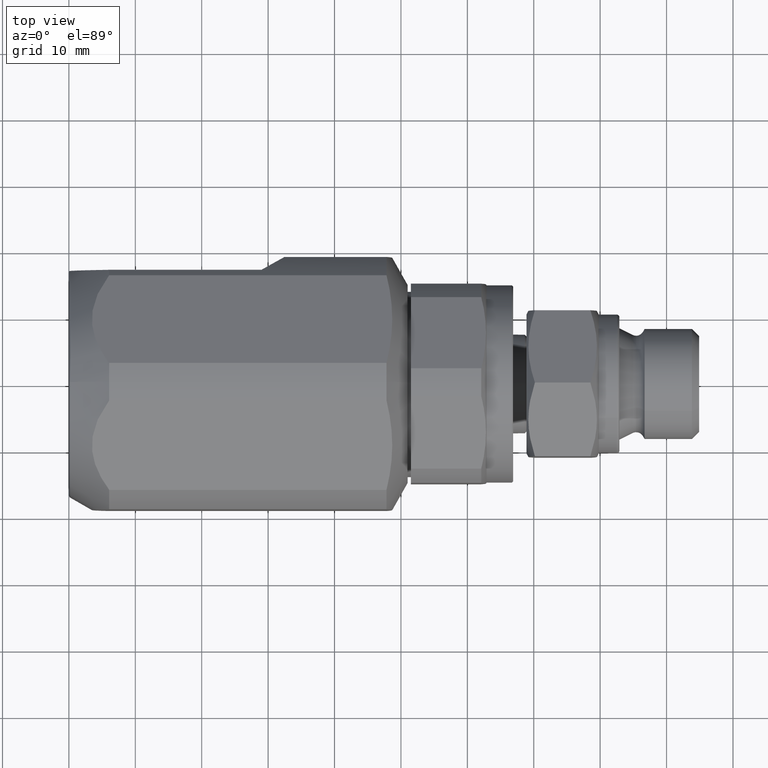
[diagram: clean part render]
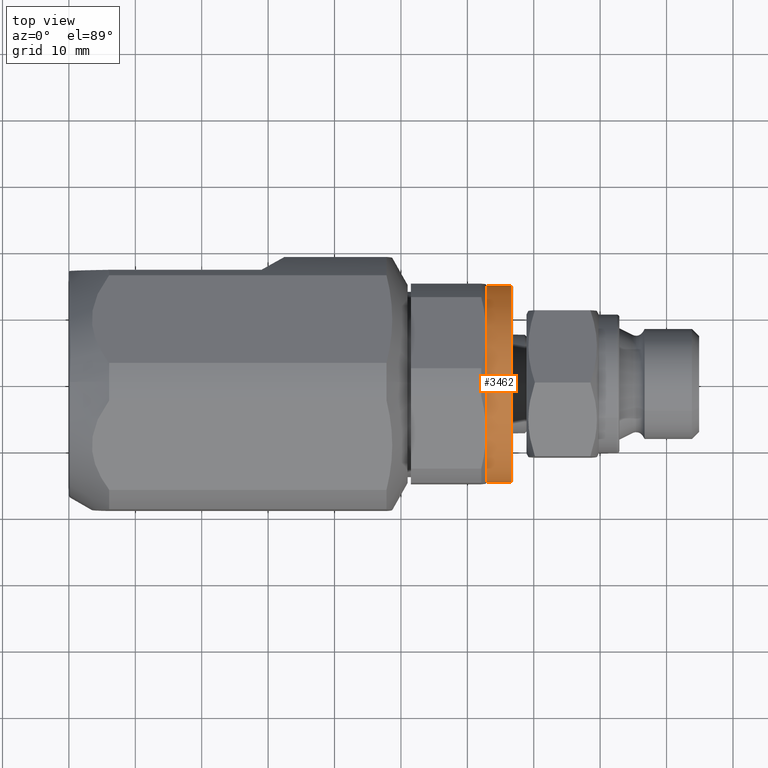
[diagram: same view with one face highlighted and labeled with its STEP entity id]
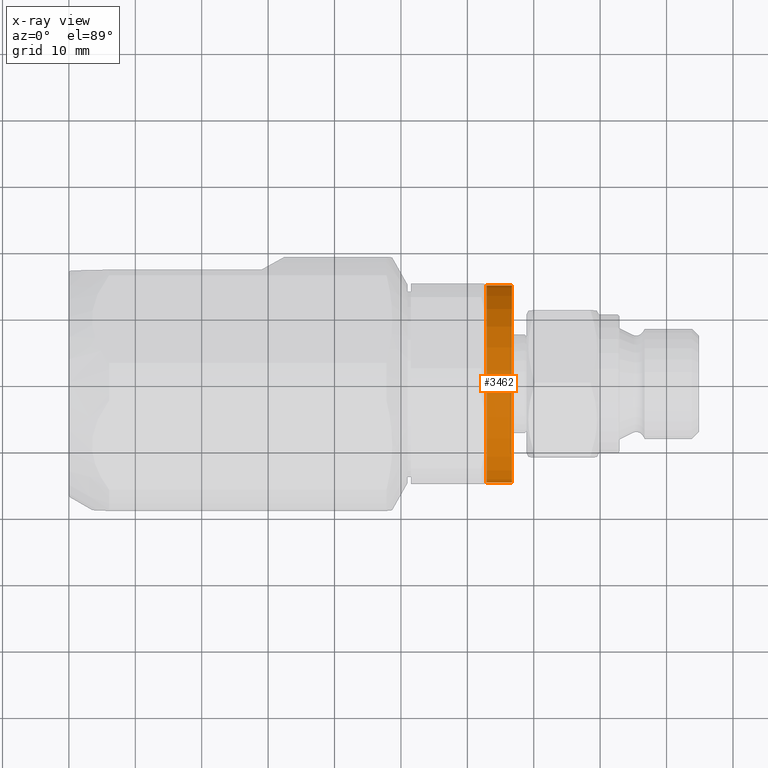
[diagram: x-ray of the same camera — body ghosted, the highlighted face saturated]
A machine part, top view. The second image highlights one B-rep face of the part: STEP entity #3462.
The next image is the same camera in x-ray: the body ghosted, the highlighted face saturated — about 0% of this face is hidden behind the body in this view.
In plain terms, the highlighted cylindrical surface (partial cylindrical patch) has radius 14.85 mm, axis along (1, -0, -0).
Its self-contained STEP definition (entity closure, byte-faithful):
#44 = VERTEX_POINT ( 'NONE', #438 ) ;
#46 = VERTEX_POINT ( 'NONE', #440 ) ;
#51 = VERTEX_POINT ( 'NONE', #445 ) ;
#74 = VERTEX_POINT ( 'NONE', #469 ) ;
#133 = EDGE_LOOP ( 'NONE', ( #2692, #2684, #2669, #2705 ) ) ;
#438 = CARTESIAN_POINT ( 'NONE',  ( 66.70000000000003100, -14.85000000000000000, -8.190250650035943700E-015 ) ) ;
#440 = CARTESIAN_POINT ( 'NONE',  ( 62.90000000000001300, 14.85000000000001200, 1.168768224695157300E-014 ) ) ;
#445 = CARTESIAN_POINT ( 'NONE',  ( 66.70000000000003100, 14.85000000000001700, 9.681564553883317900E-015 ) ) ;
#469 = CARTESIAN_POINT ( 'NONE',  ( 62.90000000000001300, -14.85000000000001400, -9.915092548602553700E-015 ) ) ;
#912 = CARTESIAN_POINT ( 'NONE',  ( 66.70000000000003100, -5.473602078767378500E-017, -2.105225955268388300E-016 ) ) ;
#913 = DIRECTION ( 'NONE',  ( 1.000000000000000000, -1.283015817066142700E-017, -4.934663061432562100E-017 ) ) ;
#914 = DIRECTION ( 'NONE',  ( 0.0000000000000000000, 1.000000000000000000, 6.661338147750938300E-016 ) ) ;
#917 = CARTESIAN_POINT ( 'NONE',  ( 62.90000000000001300, -5.981419739160447600E-018, -2.300539919240006100E-017 ) ) ;
#918 = DIRECTION ( 'NONE',  ( 1.000000000000000000, -1.283015817066142700E-017, -4.934663061432562100E-017 ) ) ;
#919 = DIRECTION ( 'NONE',  ( 0.0000000000000000000, 1.000000000000000000, 6.661338147750938300E-016 ) ) ;
#920 = CARTESIAN_POINT ( 'NONE',  ( 63.43380000000004100, -14.85000000000001700, -8.122833283290661200E-015 ) ) ;
#921 = DIRECTION ( 'NONE',  ( 1.000000000000000000, -1.283015817066142700E-017, -4.934663061432562100E-017 ) ) ;
#922 = CARTESIAN_POINT ( 'NONE',  ( 63.43380000000004100, 14.85000000000001700, 9.842740518795828500E-015 ) ) ;
#923 = DIRECTION ( 'NONE',  ( 1.000000000000000000, -1.283015817066142700E-017, -4.934663061432562100E-017 ) ) ;
#2012 = CARTESIAN_POINT ( 'NONE',  ( 63.43380000000004100, -1.283015817065914100E-017, -4.934663061432730900E-017 ) ) ;
#2013 = DIRECTION ( 'NONE',  ( 1.000000000000000000, -1.283015817066142700E-017, -4.934663061432562100E-017 ) ) ;
#2014 = DIRECTION ( 'NONE',  ( 0.0000000000000000000, 1.000000000000000000, 6.661338147750938300E-016 ) ) ;
#2275 = EDGE_CURVE ( 'NONE', #51, #44, #3051, .T. ) ;
#2277 = EDGE_CURVE ( 'NONE', #46, #74, #3054, .T. ) ;
#2278 = EDGE_CURVE ( 'NONE', #74, #44, #3053, .T. ) ;
#2279 = EDGE_CURVE ( 'NONE', #46, #51, #3056, .T. ) ;
#2458 = AXIS2_PLACEMENT_3D ( 'NONE', #912, #913, #914 ) ;
#2459 = AXIS2_PLACEMENT_3D ( 'NONE', #917, #918, #919 ) ;
#2561 = AXIS2_PLACEMENT_3D ( 'NONE', #2012, #2013, #2014 ) ;
#2669 = ORIENTED_EDGE ( 'NONE', *, *, #2275, .F. ) ;
#2684 = ORIENTED_EDGE ( 'NONE', *, *, #2278, .T. ) ;
#2692 = ORIENTED_EDGE ( 'NONE', *, *, #2277, .T. ) ;
#2705 = ORIENTED_EDGE ( 'NONE', *, *, #2279, .F. ) ;
#3051 = CIRCLE ( 'NONE', #2458, 14.85000000000001700 ) ;
#3053 = LINE ( 'NONE', #920, #3055 ) ;
#3054 = CIRCLE ( 'NONE', #2459, 14.85000000000001700 ) ;
#3055 = VECTOR ( 'NONE', #921, 1000.000000000000000 ) ;
#3056 = LINE ( 'NONE', #922, #3057 ) ;
#3057 = VECTOR ( 'NONE', #923, 1000.000000000000000 ) ;
#3312 = FACE_OUTER_BOUND ( 'NONE', #133, .T. ) ;
#3313 = CYLINDRICAL_SURFACE ( 'NONE', #2561, 14.85000000000001700 ) ;
#3462 = ADVANCED_FACE ( 'NONE', ( #3312 ), #3313, .T. ) ;